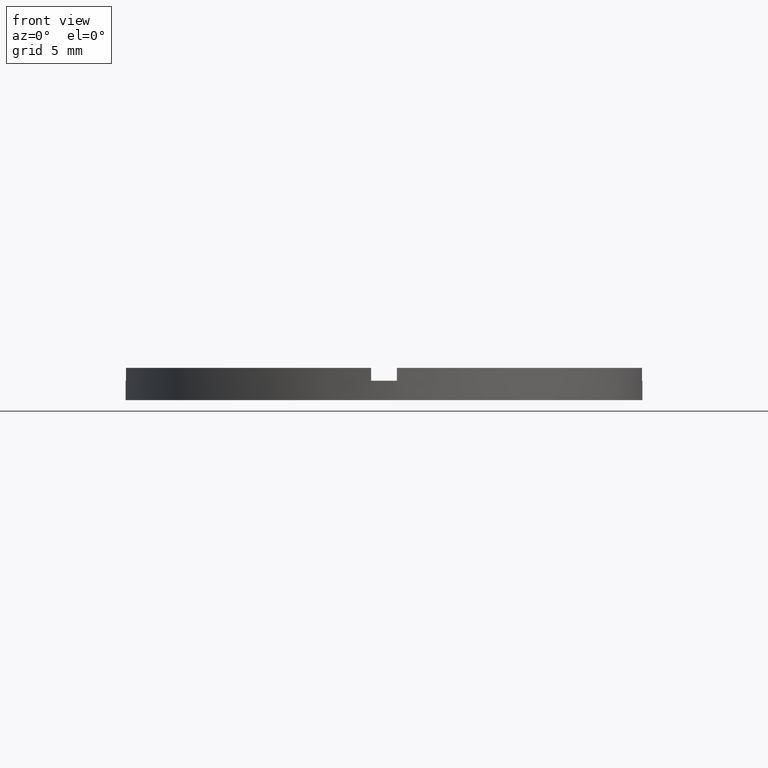
[diagram: clean part render]
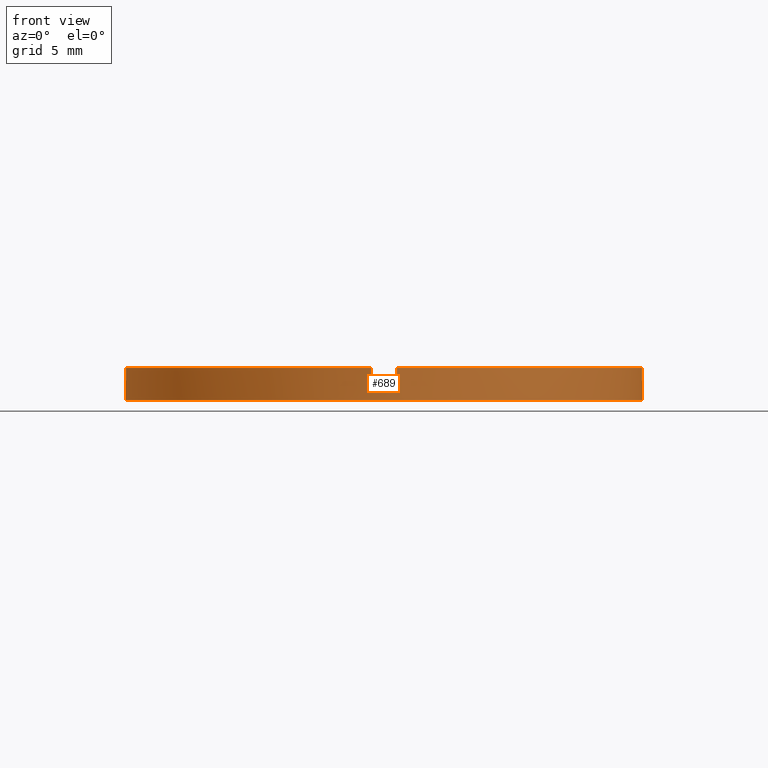
[diagram: same view with one face highlighted and labeled with its STEP entity id]
A machine part, front view. The second image highlights one B-rep face of the part: STEP entity #689.
In plain terms, the highlighted cylindrical surface (partial cylindrical patch) has radius 20 mm, axis along (-0, -0, -1).
Its self-contained STEP definition (entity closure, byte-faithful):
#3 = DIRECTION ( 'NONE',  ( 0.000000000000000000, 0.000000000000000000, 1.000000000000000000 ) ) ;
#6 = CARTESIAN_POINT ( 'NONE',  ( -20.00000000000000000, 0.000000000000000000, 1.500000000000000000 ) ) ;
#10 = CARTESIAN_POINT ( 'NONE',  ( 0.9999999999998395728, -19.97498435543818829, 2.500000000000000000 ) ) ;
#21 = VECTOR ( 'NONE', #203, 1000.000000000000000 ) ;
#29 = VECTOR ( 'NONE', #70, 1000.000000000000000 ) ;
#51 = CIRCLE ( 'NONE', #284, 20.00000000000000000 ) ;
#55 = ORIENTED_EDGE ( 'NONE', *, *, #473, .F. ) ;
#57 = DIRECTION ( 'NONE',  ( -0.000000000000000000, -0.000000000000000000, -1.000000000000000000 ) ) ;
#69 = EDGE_CURVE ( 'NONE', #485, #442, #565, .T. ) ;
#70 = DIRECTION ( 'NONE',  ( -0.000000000000000000, -0.000000000000000000, -1.000000000000000000 ) ) ;
#79 = EDGE_CURVE ( 'NONE', #629, #697, #292, .T. ) ;
#88 = CARTESIAN_POINT ( 'NONE',  ( 20.00000000000000000, 2.449293598294706513E-15, 1.500000000000000000 ) ) ;
#91 = CARTESIAN_POINT ( 'NONE',  ( -1.000000000000160538, -19.97498435543817052, 2.500000000000000000 ) ) ;
#92 = AXIS2_PLACEMENT_3D ( 'NONE', #209, #495, #727 ) ;
#102 = VERTEX_POINT ( 'NONE', #293 ) ;
#103 = DIRECTION ( 'NONE',  ( -0.000000000000000000, -0.000000000000000000, -1.000000000000000000 ) ) ;
#117 = CARTESIAN_POINT ( 'NONE',  ( -19.97498435543818118, -1.000000000000025757, 2.500000000000000000 ) ) ;
#122 = DIRECTION ( 'NONE',  ( -0.000000000000000000, 0.000000000000000000, 1.000000000000000000 ) ) ;
#124 = EDGE_CURVE ( 'NONE', #517, #697, #283, .T. ) ;
#125 = VERTEX_POINT ( 'NONE', #256 ) ;
#146 = FACE_OUTER_BOUND ( 'NONE', #226, .T. ) ;
#186 = LINE ( 'NONE', #584, #192 ) ;
#187 = DIRECTION ( 'NONE',  ( -0.000000000000000000, -0.000000000000000000, -1.000000000000000000 ) ) ;
#192 = VECTOR ( 'NONE', #103, 1000.000000000000000 ) ;
#197 = CARTESIAN_POINT ( 'NONE',  ( 0.000000000000000000, 0.000000000000000000, 1.500000000000000000 ) ) ;
#200 = EDGE_CURVE ( 'NONE', #442, #741, #571, .T. ) ;
#201 = ORIENTED_EDGE ( 'NONE', *, *, #511, .T. ) ;
#203 = DIRECTION ( 'NONE',  ( -0.000000000000000000, -0.000000000000000000, -1.000000000000000000 ) ) ;
#209 = CARTESIAN_POINT ( 'NONE',  ( 0.000000000000000000, 0.000000000000000000, 1.500000000000000000 ) ) ;
#210 = EDGE_CURVE ( 'NONE', #102, #741, #51, .T. ) ;
#223 = ORIENTED_EDGE ( 'NONE', *, *, #766, .T. ) ;
#226 = EDGE_LOOP ( 'NONE', ( #345, #617, #575, #55, #228, #574, #201, #447, #376, #382, #223, #500 ) ) ;
#228 = ORIENTED_EDGE ( 'NONE', *, *, #275, .T. ) ;
#236 = VERTEX_POINT ( 'NONE', #483 ) ;
#247 = CARTESIAN_POINT ( 'NONE',  ( -1.000000000000160538, -19.97498435543817052, 2.500000000000000000 ) ) ;
#252 = DIRECTION ( 'NONE',  ( 1.000000000000000000, 0.000000000000000000, 0.000000000000000000 ) ) ;
#255 = AXIS2_PLACEMENT_3D ( 'NONE', #474, #479, #737 ) ;
#256 = CARTESIAN_POINT ( 'NONE',  ( 0.9999999999998395728, -19.97498435543818829, 2.500000000000000000 ) ) ;
#262 = CARTESIAN_POINT ( 'NONE',  ( 0.000000000000000000, 0.000000000000000000, 2.500000000000000000 ) ) ;
#271 = CARTESIAN_POINT ( 'NONE',  ( 19.97498435543817408, -1.000000000000156986, 2.500000000000000000 ) ) ;
#272 = EDGE_CURVE ( 'NONE', #746, #236, #544, .T. ) ;
#275 = EDGE_CURVE ( 'NONE', #125, #236, #298, .T. ) ;
#283 = LINE ( 'NONE', #117, #21 ) ;
#284 = AXIS2_PLACEMENT_3D ( 'NONE', #419, #660, #531 ) ;
#289 = LINE ( 'NONE', #444, #557 ) ;
#292 = CIRCLE ( 'NONE', #455, 20.00000000000000000 ) ;
#293 = CARTESIAN_POINT ( 'NONE',  ( -20.00000000000000000, 0.000000000000000000, 0.000000000000000000 ) ) ;
#298 = LINE ( 'NONE', #10, #29 ) ;
#315 = EDGE_CURVE ( 'NONE', #485, #370, #289, .T. ) ;
#319 = CARTESIAN_POINT ( 'NONE',  ( -19.97498435543818118, -1.000000000000025757, 1.500000000000000000 ) ) ;
#345 = ORIENTED_EDGE ( 'NONE', *, *, #200, .F. ) ;
#370 = VERTEX_POINT ( 'NONE', #271 ) ;
#376 = ORIENTED_EDGE ( 'NONE', *, *, #124, .T. ) ;
#382 = ORIENTED_EDGE ( 'NONE', *, *, #79, .F. ) ;
#392 = CARTESIAN_POINT ( 'NONE',  ( 19.97498435543817408, -1.000000000000156986, 1.500000000000000000 ) ) ;
#393 = CARTESIAN_POINT ( 'NONE',  ( -19.97498435543818118, -1.000000000000025757, 2.500000000000000000 ) ) ;
#405 = DIRECTION ( 'NONE',  ( 0.000000000000000000, 0.000000000000000000, 1.000000000000000000 ) ) ;
#406 = CIRCLE ( 'NONE', #255, 20.00000000000000000 ) ;
#418 = LINE ( 'NONE', #91, #452 ) ;
#419 = CARTESIAN_POINT ( 'NONE',  ( 0.000000000000000000, 0.000000000000000000, 0.000000000000000000 ) ) ;
#442 = VERTEX_POINT ( 'NONE', #88 ) ;
#444 = CARTESIAN_POINT ( 'NONE',  ( 19.97498435543817408, -1.000000000000156986, 2.500000000000000000 ) ) ;
#447 = ORIENTED_EDGE ( 'NONE', *, *, #535, .F. ) ;
#452 = VECTOR ( 'NONE', #505, 1000.000000000000000 ) ;
#455 = AXIS2_PLACEMENT_3D ( 'NONE', #197, #3, #252 ) ;
#462 = VERTEX_POINT ( 'NONE', #247 ) ;
#473 = EDGE_CURVE ( 'NONE', #125, #370, #700, .T. ) ;
#474 = CARTESIAN_POINT ( 'NONE',  ( 0.000000000000000000, 0.000000000000000000, 2.500000000000000000 ) ) ;
#479 = DIRECTION ( 'NONE',  ( 0.000000000000000000, 0.000000000000000000, 1.000000000000000000 ) ) ;
#483 = CARTESIAN_POINT ( 'NONE',  ( 0.9999999999998395728, -19.97498435543818829, 1.500000000000000000 ) ) ;
#485 = VERTEX_POINT ( 'NONE', #392 ) ;
#488 = DIRECTION ( 'NONE',  ( 1.000000000000000000, 0.000000000000000000, 0.000000000000000000 ) ) ;
#489 = CARTESIAN_POINT ( 'NONE',  ( 20.00000000000000000, 2.449293598294706513E-15, 2.500000000000000000 ) ) ;
#492 = CARTESIAN_POINT ( 'NONE',  ( 0.000000000000000000, 0.000000000000000000, 2.500000000000000000 ) ) ;
#495 = DIRECTION ( 'NONE',  ( 0.000000000000000000, 0.000000000000000000, 1.000000000000000000 ) ) ;
#496 = DIRECTION ( 'NONE',  ( -1.000000000000000000, 0.000000000000000000, 0.000000000000000000 ) ) ;
#500 = ORIENTED_EDGE ( 'NONE', *, *, #210, .T. ) ;
#504 = DIRECTION ( 'NONE',  ( 0.000000000000000000, 0.000000000000000000, 1.000000000000000000 ) ) ;
#505 = DIRECTION ( 'NONE',  ( 0.000000000000000000, 0.000000000000000000, 1.000000000000000000 ) ) ;
#511 = EDGE_CURVE ( 'NONE', #746, #462, #418, .T. ) ;
#517 = VERTEX_POINT ( 'NONE', #393 ) ;
#530 = AXIS2_PLACEMENT_3D ( 'NONE', #262, #187, #496 ) ;
#531 = DIRECTION ( 'NONE',  ( 1.000000000000000000, 0.000000000000000000, 0.000000000000000000 ) ) ;
#535 = EDGE_CURVE ( 'NONE', #517, #462, #406, .T. ) ;
#542 = DIRECTION ( 'NONE',  ( 1.000000000000000000, 0.000000000000000000, 0.000000000000000000 ) ) ;
#543 = VECTOR ( 'NONE', #57, 1000.000000000000000 ) ;
#544 = CIRCLE ( 'NONE', #686, 20.00000000000000000 ) ;
#557 = VECTOR ( 'NONE', #504, 1000.000000000000000 ) ;
#565 = CIRCLE ( 'NONE', #92, 20.00000000000000000 ) ;
#566 = AXIS2_PLACEMENT_3D ( 'NONE', #492, #405, #488 ) ;
#571 = LINE ( 'NONE', #489, #543 ) ;
#574 = ORIENTED_EDGE ( 'NONE', *, *, #272, .F. ) ;
#575 = ORIENTED_EDGE ( 'NONE', *, *, #315, .T. ) ;
#584 = CARTESIAN_POINT ( 'NONE',  ( -20.00000000000000000, 0.000000000000000000, 2.500000000000000000 ) ) ;
#617 = ORIENTED_EDGE ( 'NONE', *, *, #69, .F. ) ;
#629 = VERTEX_POINT ( 'NONE', #6 ) ;
#648 = CARTESIAN_POINT ( 'NONE',  ( 20.00000000000000000, 2.449293598294706513E-15, 0.000000000000000000 ) ) ;
#660 = DIRECTION ( 'NONE',  ( 0.000000000000000000, 0.000000000000000000, 1.000000000000000000 ) ) ;
#686 = AXIS2_PLACEMENT_3D ( 'NONE', #747, #122, #542 ) ;
#689 = ADVANCED_FACE ( 'NONE', ( #146 ), #708, .T. ) ;
#697 = VERTEX_POINT ( 'NONE', #319 ) ;
#700 = CIRCLE ( 'NONE', #566, 20.00000000000000000 ) ;
#708 = CYLINDRICAL_SURFACE ( 'NONE', #530, 20.00000000000000000 ) ;
#727 = DIRECTION ( 'NONE',  ( 1.000000000000000000, 0.000000000000000000, 0.000000000000000000 ) ) ;
#736 = CARTESIAN_POINT ( 'NONE',  ( -1.000000000000160538, -19.97498435543817052, 1.500000000000000000 ) ) ;
#737 = DIRECTION ( 'NONE',  ( 1.000000000000000000, 0.000000000000000000, 0.000000000000000000 ) ) ;
#741 = VERTEX_POINT ( 'NONE', #648 ) ;
#746 = VERTEX_POINT ( 'NONE', #736 ) ;
#747 = CARTESIAN_POINT ( 'NONE',  ( 0.000000000000000000, 0.000000000000000000, 1.500000000000000000 ) ) ;
#766 = EDGE_CURVE ( 'NONE', #629, #102, #186, .T. ) ;